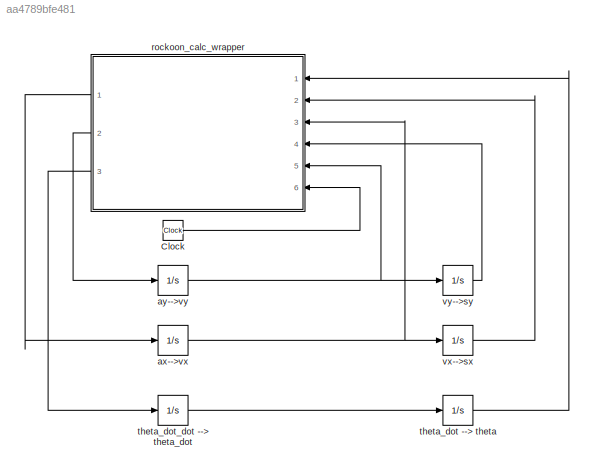
MODEL slx_aa4789bfe481
KIND model
BLOCK [Clock] Clock
BLOCK [Integrator] ax-->vx
  InitialCondition = vx_0
  Ports = [1, 1]
BLOCK [Integrator] ay-->vy
  InitialCondition = vy_0
  Ports = [1, 1]
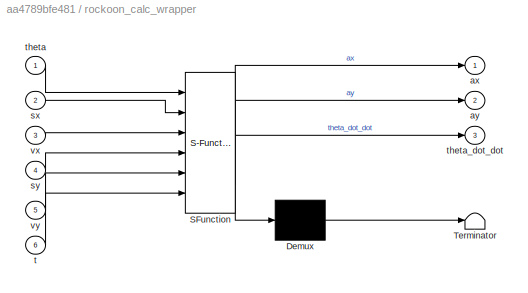
BLOCK [SubSystem] rockoon_calc_wrapper
  ErrorFcn = Stateflow.Translate.translate
  FunctionWithSeparateData = off
  MaskHideContents = off
  MinAlgLoopOccurrences = off
  Opaque = off
  PermitHierarchicalResolution = ExplicitOnly
  Ports = [6, 3]
  PropExecContextOutsideSubsystem = off
  RTWSystemCode = Auto
  RequestExecContextInheritance = off
  SFBlockType = MATLAB Function
  TreatAsAtomicUnit = on
BLOCK [Demux] rockoon_calc_wrapper/ Demux 
  Outputs = 1
  Ports = [1, 1]
BLOCK [S-Function] rockoon_calc_wrapper/ SFunction 
  EnableBusSupport = on
  FunctionName = sf_sfun
  PortCounts = [6 4]
  Ports = [6, 4]
  Tag = Stateflow S-Function rockoon_2D_Launch 2
BLOCK [Terminator] rockoon_calc_wrapper/ Terminator 
BLOCK [Outport] rockoon_calc_wrapper/ax
  IconDisplay = Port number
BLOCK [Outport] rockoon_calc_wrapper/ay
  IconDisplay = Port number
  Port = 2
BLOCK [Inport] rockoon_calc_wrapper/sx
  IconDisplay = Port number
  Port = 2
BLOCK [Inport] rockoon_calc_wrapper/sy
  IconDisplay = Port number
  Port = 4
BLOCK [Inport] rockoon_calc_wrapper/t
  IconDisplay = Port number
  Port = 6
BLOCK [Inport] rockoon_calc_wrapper/theta
  IconDisplay = Port number
BLOCK [Outport] rockoon_calc_wrapper/theta_dot_dot
  IconDisplay = Port number
  Port = 3
BLOCK [Inport] rockoon_calc_wrapper/vx
  IconDisplay = Port number
  Port = 3
BLOCK [Inport] rockoon_calc_wrapper/vy
  IconDisplay = Port number
  Port = 5
BLOCK [Integrator] theta_dot --> theta
  InitialCondition = theta_0
  Ports = [1, 1]
BLOCK [Integrator] theta_dot_dot --> theta_dot
  InitialCondition = theta_dot_0
  Ports = [1, 1]
BLOCK [Integrator] vx-->sx
  InitialCondition = sx_0
  Ports = [1, 1]
BLOCK [Integrator] vy-->sy
  InitialCondition = sy_0
  Ports = [1, 1]
LINE Clock:1 -> rockoon_calc_wrapper:6
NET ax-->vx:1 -> rockoon_calc_wrapper:3, vx-->sx:1
NET ay-->vy:1 -> rockoon_calc_wrapper:5, vy-->sy:1
LINE rockoon_calc_wrapper:1 -> ax-->vx:1
LINE rockoon_calc_wrapper:2 -> ay-->vy:1
LINE rockoon_calc_wrapper:3 -> theta_dot_dot --> theta_dot:1
LINE theta_dot --> theta:1 -> rockoon_calc_wrapper:1
LINE theta_dot_dot --> theta_dot:1 -> theta_dot --> theta:1
LINE vx-->sx:1 -> rockoon_calc_wrapper:2
LINE vy-->sy:1 -> rockoon_calc_wrapper:4
note: NET lines group one-source signal fan-out (src -> all destinations, sorted); 1:1 wires keep LINE
